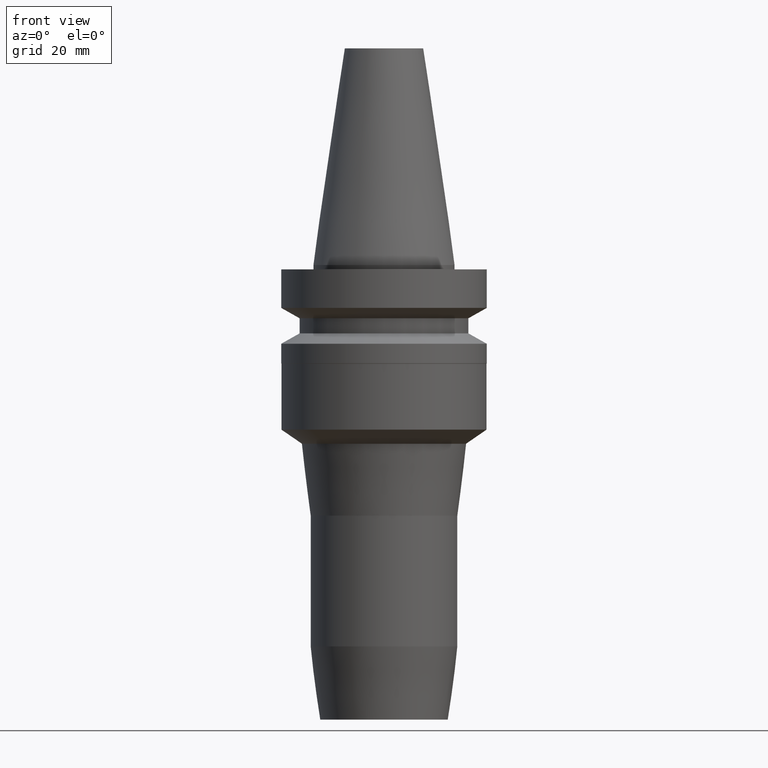
[diagram: clean part render]
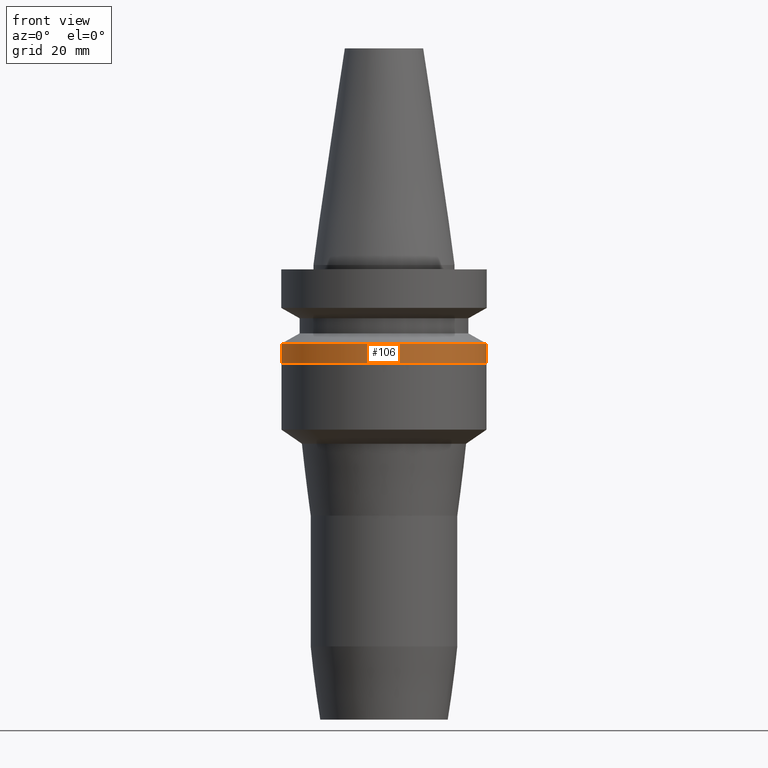
[diagram: same view with one face highlighted and labeled with its STEP entity id]
A machine part, front view. The second image highlights one B-rep face of the part: STEP entity #106.
In plain terms, the highlighted cylindrical surface (bore or boss wall) has radius 23 mm, axis along (0, 0, -1).
Its self-contained STEP definition (entity closure, byte-faithful):
#65=EDGE_CURVE('Unnamed[1]',#166,#166,#167,.T.);
#67=EDGE_CURVE('Unnamed[1]',#169,#169,#170,.T.);
#106=ADVANCED_FACE('Unnamed[1]',(#230,#231),#232,.T.);
#166=VERTEX_POINT('',#303);
#167=CIRCLE('',#304,23.0);
#169=VERTEX_POINT('',#307);
#170=CIRCLE('',#308,23.0);
#230=FACE_BOUND('',#383,.T.);
#231=FACE_BOUND('',#384,.T.);
#232=CYLINDRICAL_SURFACE('',#385,23.0);
#303=CARTESIAN_POINT('',(1.07768918324967E-015,23.0,-17.6));
#304=AXIS2_PLACEMENT_3D('',#456,#457,#458);
#307=CARTESIAN_POINT('',(1.34711147906216E-015,23.0,-22.0000000000012));
#308=AXIS2_PLACEMENT_3D('',#459,#460,#461);
#383=EDGE_LOOP('',(#528));
#384=EDGE_LOOP('',(#529));
#385=AXIS2_PLACEMENT_3D('',#530,#531,#532);
#456=CARTESIAN_POINT('',(1.07768918324967E-015,2.15537836649934E-015,-17.6));
#457=DIRECTION('',(6.12323399573677E-017,1.22464679914735E-016,-1.0));
#458=DIRECTION('',(-1.23259516440783E-032,1.0,1.22464679914735E-016));
#459=CARTESIAN_POINT('',(1.34711147906216E-015,2.69422295812433E-015,-22.0000000000012));
#460=DIRECTION('',(6.12323399573677E-017,1.22464679914735E-016,-1.0));
#461=DIRECTION('',(-1.23259516440783E-032,1.0,1.22464679914735E-016));
#528=ORIENTED_EDGE('',*,*,#67,.F.);
#529=ORIENTED_EDGE('',*,*,#65,.T.);
#530=CARTESIAN_POINT('',(1.21240033115592E-015,2.42480066231183E-015,-19.8000000000006));
#531=DIRECTION('',(6.12323399573677E-017,1.22464679914735E-016,-1.0));
#532=DIRECTION('',(-1.23259516440783E-032,1.0,1.22464679914735E-016));